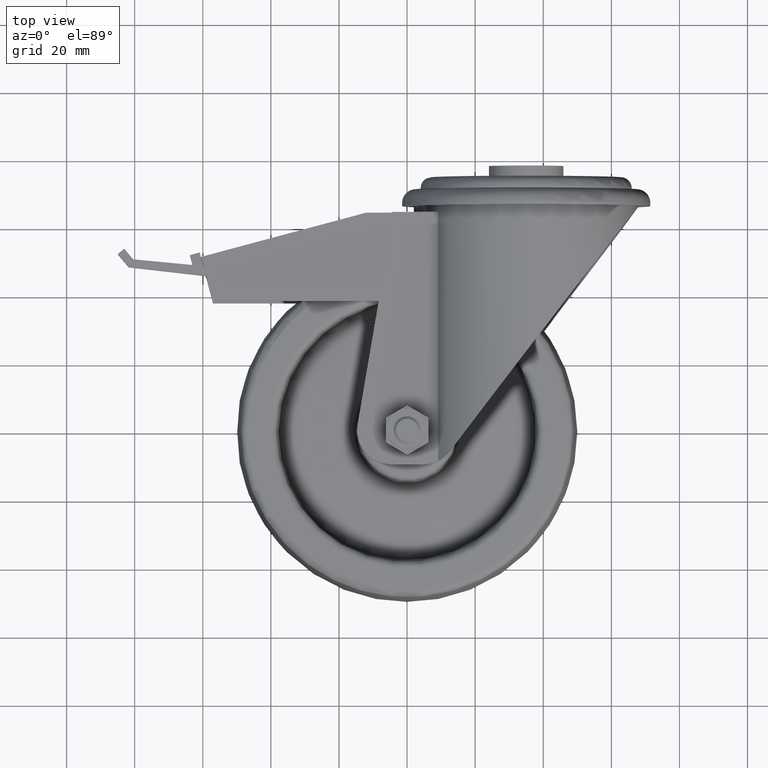
[diagram: clean part render]
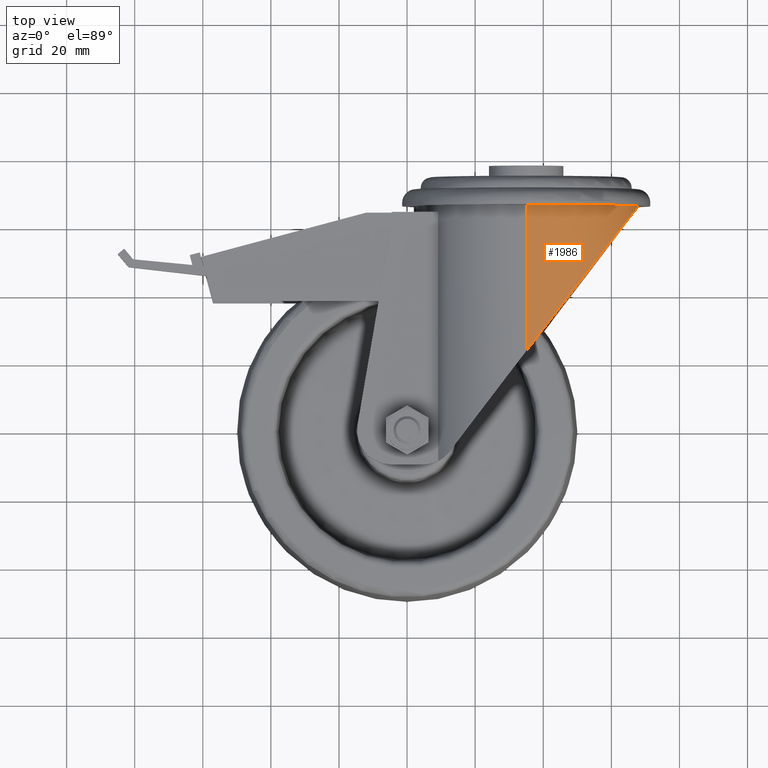
[diagram: same view with one face highlighted and labeled with its STEP entity id]
A machine part, top view. The second image highlights one B-rep face of the part: STEP entity #1986.
In plain terms, the highlighted cylindrical surface (partial cylindrical patch) has radius 33 mm, axis along (0, -1, 0).
Its self-contained STEP definition (entity closure, byte-faithful):
#238=FACE_OUTER_BOUND('',#367,.T.);
#367=EDGE_LOOP('',(#1374,#1375,#1376));
#516=CIRCLE('',#2228,33.);
#622=ELLIPSE('',#2227,54.2711679404773,33.);
#627=LINE('',#3100,#760);
#760=VECTOR('',#2476,33.);
#893=VERTEX_POINT('',#3098);
#894=VERTEX_POINT('',#3099);
#895=VERTEX_POINT('',#3101);
#1078=EDGE_CURVE('',#893,#894,#627,.T.);
#1079=EDGE_CURVE('',#895,#893,#622,.T.);
#1080=EDGE_CURVE('',#895,#894,#516,.F.);
#1374=ORIENTED_EDGE('',*,*,#1078,.F.);
#1375=ORIENTED_EDGE('',*,*,#1079,.F.);
#1376=ORIENTED_EDGE('',*,*,#1080,.T.);
#1966=CYLINDRICAL_SURFACE('',#2226,33.);
#1986=ADVANCED_FACE('',(#238),#1966,.T.);
#2226=AXIS2_PLACEMENT_3D('',#3097,#2474,#2475);
#2227=AXIS2_PLACEMENT_3D('',#3102,#2477,#2478);
#2228=AXIS2_PLACEMENT_3D('',#3103,#2479,#2480);
#2474=DIRECTION('center_axis',(0.,-1.,0.));
#2475=DIRECTION('ref_axis',(0.,0.,-1.));
#2476=DIRECTION('',(0.,1.,0.));
#2477=DIRECTION('center_axis',(0.79389285693816,-0.608057671362319,0.));
#2478=DIRECTION('ref_axis',(-0.608057671362319,-0.79389285693816,0.));
#2479=DIRECTION('center_axis',(0.,1.,0.));
#2480=DIRECTION('ref_axis',(0.,0.,1.));
#3097=CARTESIAN_POINT('Origin',(35.,-10.,0.));
#3098=CARTESIAN_POINT('',(35.,23.1145074343638,33.));
#3099=CARTESIAN_POINT('',(35.,66.2,33.));
#3100=CARTESIAN_POINT('',(35.,-10.,33.));
#3101=CARTESIAN_POINT('',(68.,66.2,0.));
#3102=CARTESIAN_POINT('Origin',(35.,23.1145074343638,0.));
#3103=CARTESIAN_POINT('Origin',(35.,66.2,0.));